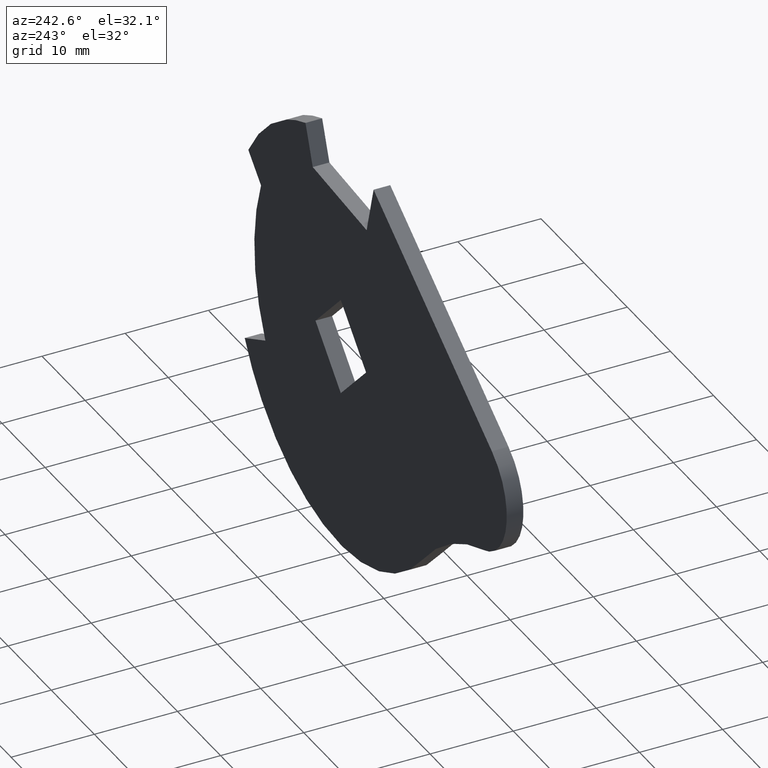
[diagram: clean part render]
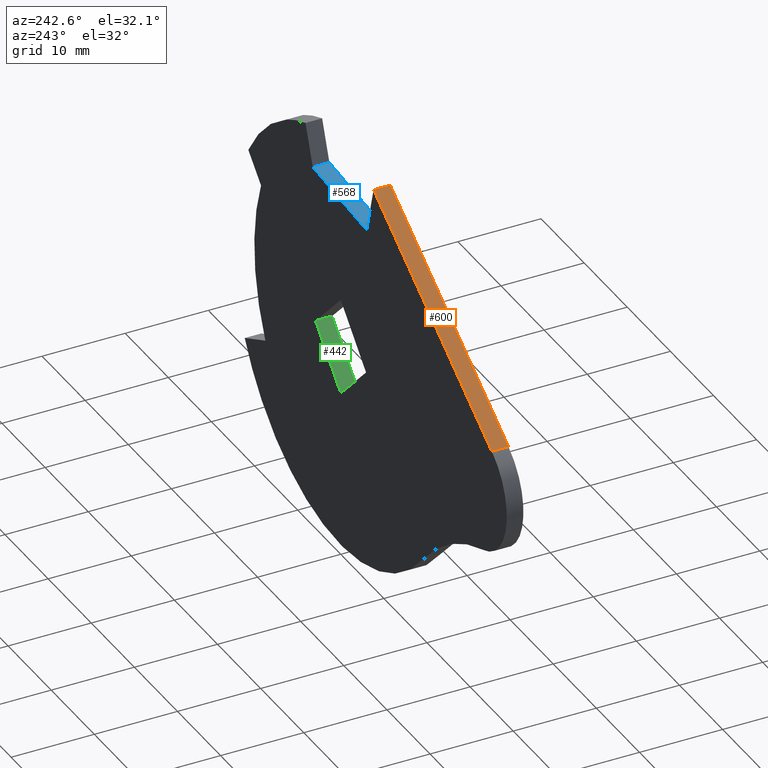
[diagram: same view with three faces highlighted in distinct colors, each labeled with its STEP entity id]
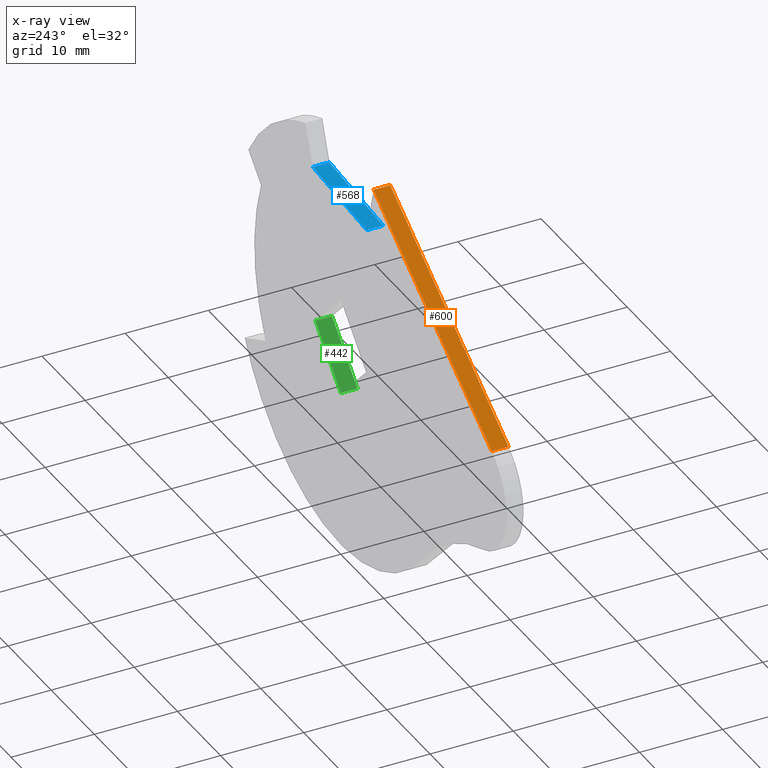
[diagram: x-ray of the same camera — body ghosted, the three highlighted faces saturated]
A machine part, auxiliary view with three faces highlighted in distinct colors.
The next image is the same camera in x-ray (body ghosted, the three faces saturated) — at least one of them is partly hidden behind the body in this view.
Their STEP definitions:

[orange] entity #600 — the highlighted face is a freeform B-spline surface patch.
#66=CARTESIAN_POINT('',(-35.029268839974250,0.0,6.325740479597029));
#67=VERTEX_POINT('',#66);
#83=CARTESIAN_POINT('',(-7.607000000000000,0.0,24.0));
#84=VERTEX_POINT('',#83);
#85=CARTESIAN_POINT('',(-35.029268839974250,0.0,6.325740479597029));
#86=CARTESIAN_POINT('',(-7.607000000000000,0.0,24.0));
#87=QUASI_UNIFORM_CURVE('',1,(#85,#86),.UNSPECIFIED.,.F.,.U.);
#88=EDGE_CURVE('',#67,#84,#87,.T.);
#300=CARTESIAN_POINT('',(-7.607000000000000,-2.0,24.0));
#301=VERTEX_POINT('',#300);
#307=CARTESIAN_POINT('',(-35.029268839974250,-2.0,6.325740479597029));
#308=VERTEX_POINT('',#307);
#309=CARTESIAN_POINT('',(-35.029268839974250,-2.0,6.325740479597029));
#310=CARTESIAN_POINT('',(-7.607000000000000,-2.0,24.0));
#311=QUASI_UNIFORM_CURVE('',1,(#309,#310),.UNSPECIFIED.,.F.,.U.);
#312=EDGE_CURVE('',#308,#301,#311,.T.);
#575=CARTESIAN_POINT('',(-7.607000000000000,-2.0,24.0));
#576=CARTESIAN_POINT('',(-7.607000000000000,0.0,24.0));
#577=QUASI_UNIFORM_CURVE('',1,(#575,#576),.UNSPECIFIED.,.F.,.U.);
#578=EDGE_CURVE('',#301,#84,#577,.T.);
#585=CARTESIAN_POINT('',(-36.399012145063843,-2.099899996123611,5.442910587155839));
#586=CARTESIAN_POINT('',(-6.237256940084643,-2.099899996123611,24.882829734421090));
#587=CARTESIAN_POINT('',(-36.399012145063843,0.099900049767792,5.442910587155839));
#588=CARTESIAN_POINT('',(-6.237256940084643,0.099900049767792,24.882829734421090));
#589=B_SPLINE_SURFACE_WITH_KNOTS('',1,1,((#585,#587),(#586,#588)),.UNSPECIFIED.,.F.,.F.,.U.,(2,2),(2,2),(0.0,35.883727976581532),(0.0,2.199800045891403),.UNSPECIFIED.);
#590=ORIENTED_EDGE('',*,*,#88,.F.);
#591=CARTESIAN_POINT('',(-35.029268839974250,-2.0,6.325740479597029));
#592=CARTESIAN_POINT('',(-35.029268839974250,0.0,6.325740479597029));
#593=QUASI_UNIFORM_CURVE('',1,(#591,#592),.UNSPECIFIED.,.F.,.U.);
#594=EDGE_CURVE('',#308,#67,#593,.T.);
#595=ORIENTED_EDGE('',*,*,#594,.F.);
#596=ORIENTED_EDGE('',*,*,#312,.T.);
#597=ORIENTED_EDGE('',*,*,#578,.T.);
#598=EDGE_LOOP('',(#590,#595,#596,#597));
#599=FACE_OUTER_BOUND('',#598,.T.);
#600=ADVANCED_FACE('',(#599),#589,.T.);

[blue] entity #568 — the highlighted face is a freeform B-spline surface patch.
#90=CARTESIAN_POINT('',(-6.0,0.0,18.0));
#91=VERTEX_POINT('',#90);
#97=CARTESIAN_POINT('',(6.500000000000000,0.0,19.0));
#98=VERTEX_POINT('',#97);
#99=CARTESIAN_POINT('',(-6.0,0.0,18.0));
#100=CARTESIAN_POINT('',(6.500000000000000,0.0,19.0));
#101=QUASI_UNIFORM_CURVE('',1,(#99,#100),.UNSPECIFIED.,.F.,.U.);
#102=EDGE_CURVE('',#91,#98,#101,.T.);
#286=CARTESIAN_POINT('',(6.500000000000000,-2.0,19.0));
#287=VERTEX_POINT('',#286);
#293=CARTESIAN_POINT('',(-6.0,-2.0,18.0));
#294=VERTEX_POINT('',#293);
#295=CARTESIAN_POINT('',(-6.0,-2.0,18.0));
#296=CARTESIAN_POINT('',(6.500000000000000,-2.0,19.0));
#297=QUASI_UNIFORM_CURVE('',1,(#295,#296),.UNSPECIFIED.,.F.,.U.);
#298=EDGE_CURVE('',#294,#287,#297,.T.);
#543=CARTESIAN_POINT('',(6.500000000000000,-2.0,19.0));
#544=CARTESIAN_POINT('',(6.500000000000000,0.0,19.0));
#545=QUASI_UNIFORM_CURVE('',1,(#543,#544),.UNSPECIFIED.,.F.,.U.);
#546=EDGE_CURVE('',#287,#98,#545,.T.);
#553=CARTESIAN_POINT('',(-6.624374975772577,-2.099899996123612,17.950050001938191));
#554=CARTESIAN_POINT('',(7.124375311048704,-2.099899996123612,19.049950024883891));
#555=CARTESIAN_POINT('',(-6.624374975772576,0.099900049767792,17.950050001938191));
#556=CARTESIAN_POINT('',(7.124375311048704,0.099900049767792,19.049950024883891));
#557=B_SPLINE_SURFACE_WITH_KNOTS('',1,1,((#553,#555),(#554,#556)),.UNSPECIFIED.,.F.,.F.,.U.,(2,2),(2,2),(0.0,13.792676118500150),(0.0,2.199800045891404),.UNSPECIFIED.);
#558=ORIENTED_EDGE('',*,*,#102,.F.);
#559=CARTESIAN_POINT('',(-6.0,-2.0,18.0));
#560=CARTESIAN_POINT('',(-6.0,0.0,18.0));
#561=QUASI_UNIFORM_CURVE('',1,(#559,#560),.UNSPECIFIED.,.F.,.U.);
#562=EDGE_CURVE('',#294,#91,#561,.T.);
#563=ORIENTED_EDGE('',*,*,#562,.F.);
#564=ORIENTED_EDGE('',*,*,#298,.T.);
#565=ORIENTED_EDGE('',*,*,#546,.T.);
#566=EDGE_LOOP('',(#558,#563,#564,#565));
#567=FACE_OUTER_BOUND('',#566,.T.);
#568=ADVANCED_FACE('',(#567),#557,.T.);

[green] entity #442 — the highlighted face is a freeform B-spline surface patch.
#172=CARTESIAN_POINT('',(0.0,0.0,-5.868999999999900));
#173=VERTEX_POINT('',#172);
#181=CARTESIAN_POINT('',(5.869000000000000,0.0,0.0));
#182=VERTEX_POINT('',#181);
#183=CARTESIAN_POINT('',(5.869000000000000,0.0,0.0));
#184=CARTESIAN_POINT('',(0.0,0.0,-5.868999999999900));
#185=QUASI_UNIFORM_CURVE('',1,(#183,#184),.UNSPECIFIED.,.F.,.U.);
#186=EDGE_CURVE('',#182,#173,#185,.T.);
#331=CARTESIAN_POINT('',(0.0,-2.0,-5.868999999999900));
#332=VERTEX_POINT('',#331);
#347=CARTESIAN_POINT('',(5.869000000000000,-2.0,0.0));
#348=VERTEX_POINT('',#347);
#354=CARTESIAN_POINT('',(5.869000000000000,-2.0,0.0));
#355=CARTESIAN_POINT('',(0.0,-2.0,-5.868999999999900));
#356=QUASI_UNIFORM_CURVE('',1,(#354,#355),.UNSPECIFIED.,.F.,.U.);
#357=EDGE_CURVE('',#348,#332,#356,.T.);
#417=CARTESIAN_POINT('',(5.869000000000000,-2.0,0.0));
#418=CARTESIAN_POINT('',(5.869000000000000,0.0,0.0));
#419=QUASI_UNIFORM_CURVE('',1,(#417,#418),.UNSPECIFIED.,.F.,.U.);
#420=EDGE_CURVE('',#348,#182,#419,.T.);
#427=CARTESIAN_POINT('',(6.162156538624739,-2.099899996123612,0.293156538624733));
#428=CARTESIAN_POINT('',(-0.293156696043595,-2.099899996123612,-6.162156696043473));
#429=CARTESIAN_POINT('',(6.162156538624739,0.099900049767792,0.293156538624733));
#430=CARTESIAN_POINT('',(-0.293156696043595,0.099900049767792,-6.162156696043473));
#431=B_SPLINE_SURFACE_WITH_KNOTS('',1,1,((#427,#429),(#428,#430)),.UNSPECIFIED.,.F.,.F.,.U.,(2,2),(2,2),(0.0,9.129191525834402),(0.0,2.199800045891404),.UNSPECIFIED.);
#432=ORIENTED_EDGE('',*,*,#186,.T.);
#433=CARTESIAN_POINT('',(0.0,-2.0,-5.868999999999900));
#434=CARTESIAN_POINT('',(0.0,0.0,-5.868999999999900));
#435=QUASI_UNIFORM_CURVE('',1,(#433,#434),.UNSPECIFIED.,.F.,.U.);
#436=EDGE_CURVE('',#332,#173,#435,.T.);
#437=ORIENTED_EDGE('',*,*,#436,.F.);
#438=ORIENTED_EDGE('',*,*,#357,.F.);
#439=ORIENTED_EDGE('',*,*,#420,.T.);
#440=EDGE_LOOP('',(#432,#437,#438,#439));
#441=FACE_OUTER_BOUND('',#440,.T.);
#442=ADVANCED_FACE('',(#441),#431,.F.);